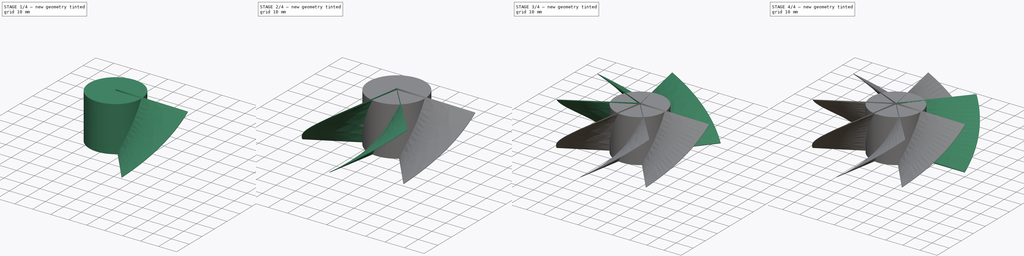
[diagram: build sequence overview — one tinted view per stage of 4, left to right]
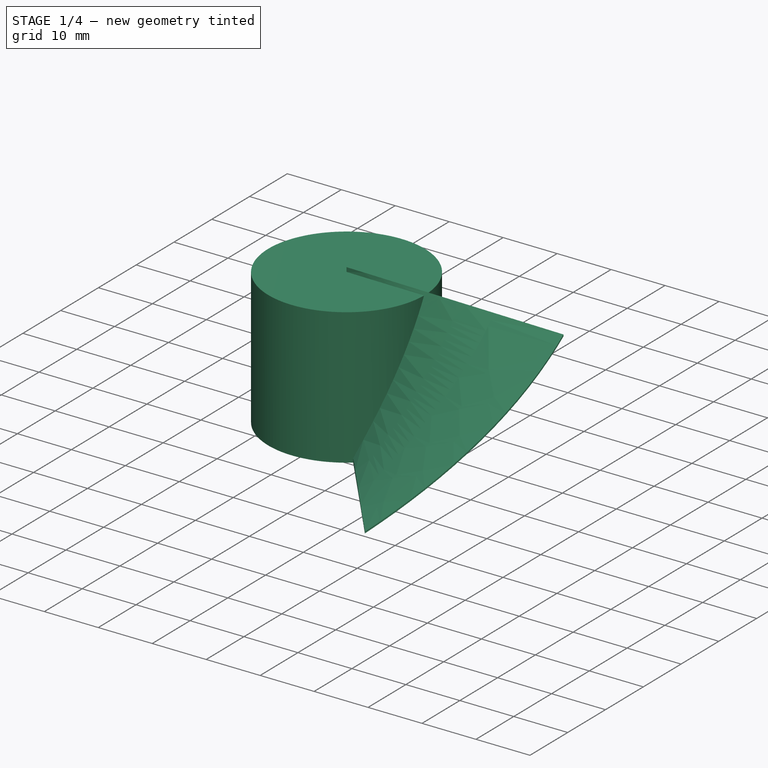
[diagram: stage 1 of 4 — iso view after this stage's code; geometry added in this stage tinted green]
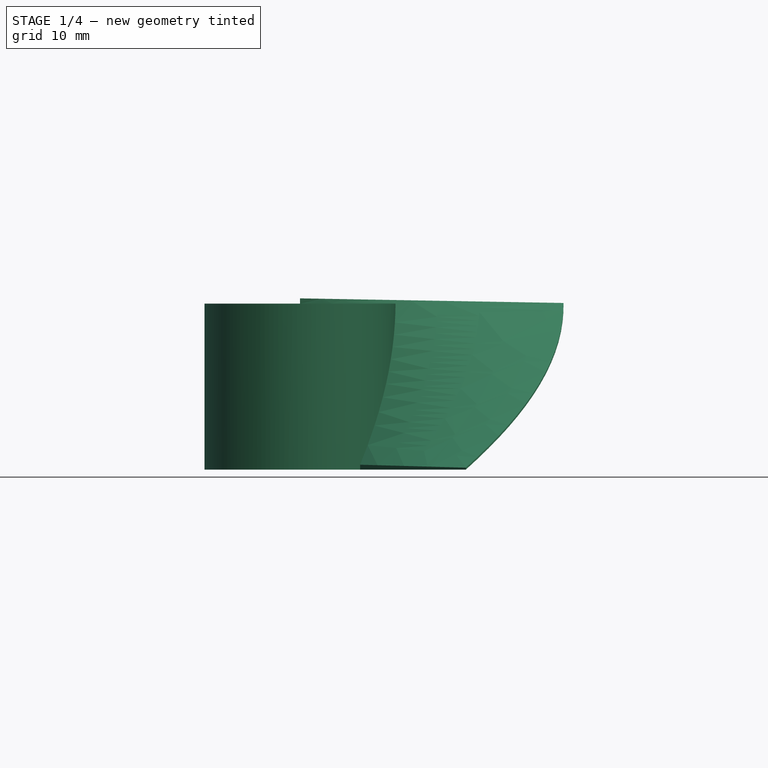
[diagram: stage 1 of 4 — front view after this stage's code; geometry added in this stage tinted green]
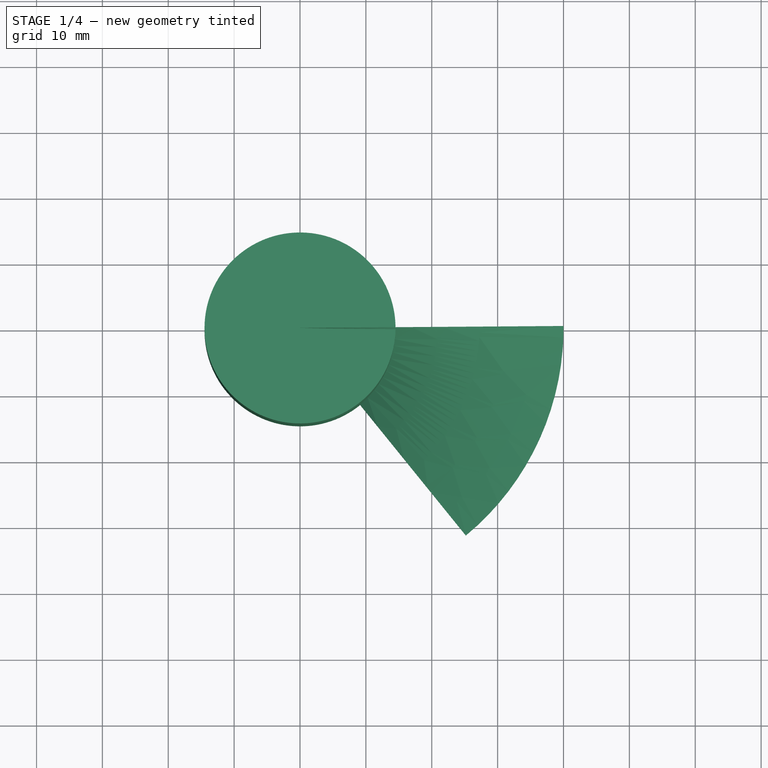
[diagram: stage 1 of 4 — top view after this stage's code; geometry added in this stage tinted green]
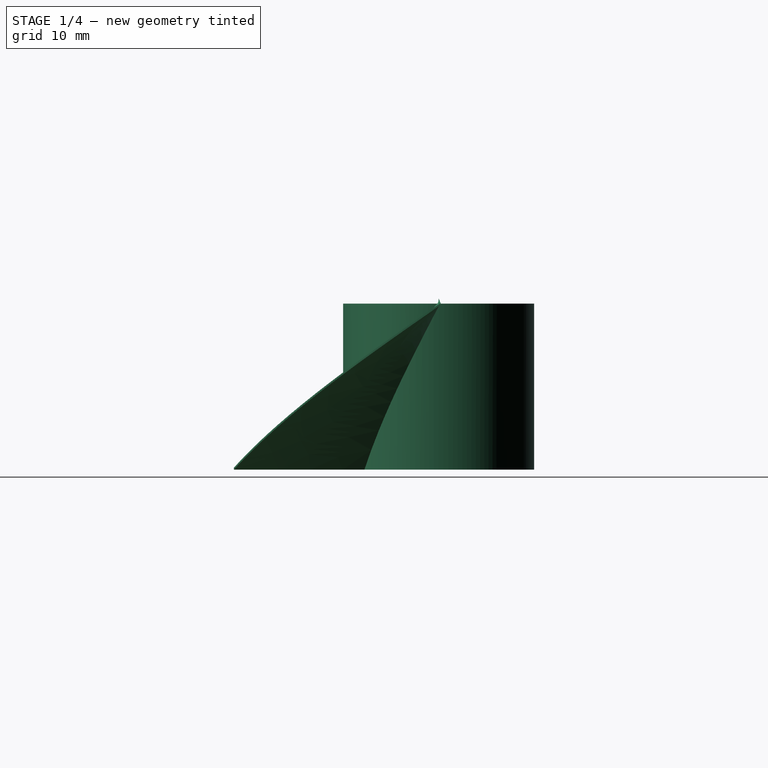
[diagram: stage 1 of 4 — right view after this stage's code; geometry added in this stage tinted green]
FCSTD DOCUMENT  (FreeCAD 0.19R23634 (Git))
Label: FanPropeller
License: All rights reserved
LicenseURL: http://en.wikipedia.org/wiki/All_rights_reserved
objects: Sketcher::SketchObject×8, PartDesign::Body×8, PartDesign::ShapeBinder×7, PartDesign::AdditivePipe×7, PartDesign::Pad×1, PartDesign::Boolean×1
note: 40 computed .brp shape members not serialized (recipe doc carries the construction recipe); baked Part::Feature solids carry a one-line shape summary decoded from their .brp

FEATURE [PartDesign::Body] Body007
  Group = -> [Sketch005,AdditivePipe005,CopyHelix005]
  Origin = -> Origin007
  Tip = -> AdditivePipe005
FEATURE [PartDesign::ShapeBinder] CopyHelix006
  Placement = pos=(0,0,0) rot=(0,0,-1;0.890118rad)
  TraceSupport = false
FEATURE [PartDesign::AdditivePipe] AdditivePipe006
  AuxilleryCurvelinear = true
  AuxillerySpineTangent = false
  Binormal = (0,0,0)
  Mode = 2
  Placement = pos=(0,0,0) rot=(1,0,0;1.5708rad)
  Profile = -> Sketch006
  Spine = -> CopyHelix006
  SpineTangent = false
  Transformation = 0
  Transition = 0
FEATURE [Sketcher::SketchObject] Sketch007
  FullyConstrained = true
  MapMode = 5
  Support = -> [XY_Plane008]
  sketch-geometry (1):
    g0: Circle CenterX=0 CenterY=0 CenterZ=0 NormalX=0 NormalY=0 NormalZ=1 AngleXU=0 Radius=14.5
  constraints (2):
    c: Coincident(g0,g-1)
    c: Diameter(g0) = 29
FEATURE [PartDesign::Pad] Pad
  BaseFeature = -> AdditivePipe006
  Direction = (1,1,1)
  Length = 25.2
  Length2 = 100
  Placement = pos=(0,0,0) rot=(1,0,0;1.5708rad)
  Profile = -> Sketch007
  Type = 0
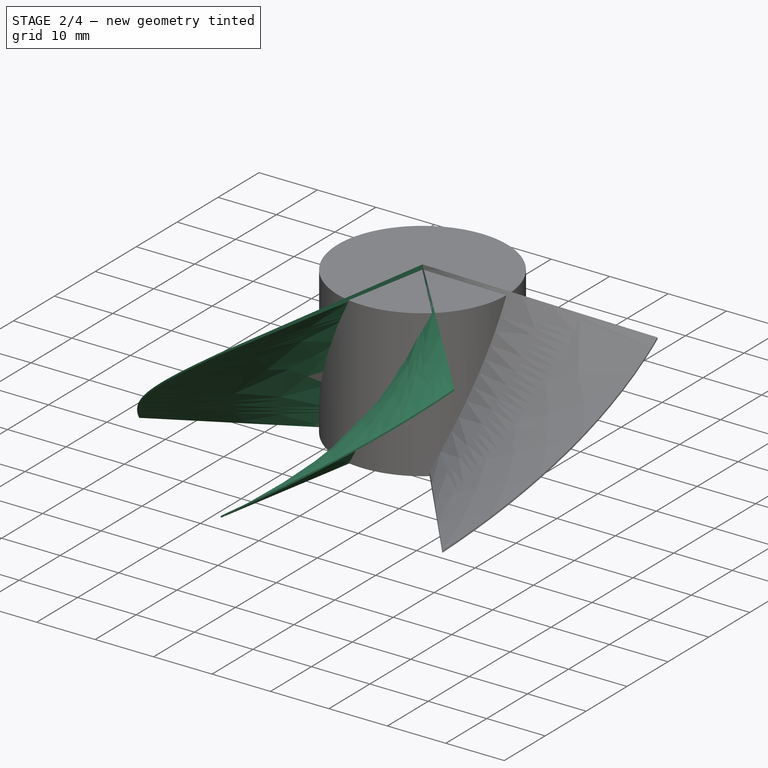
[diagram: stage 2 of 4 — iso view after this stage's code; geometry added in this stage tinted green]
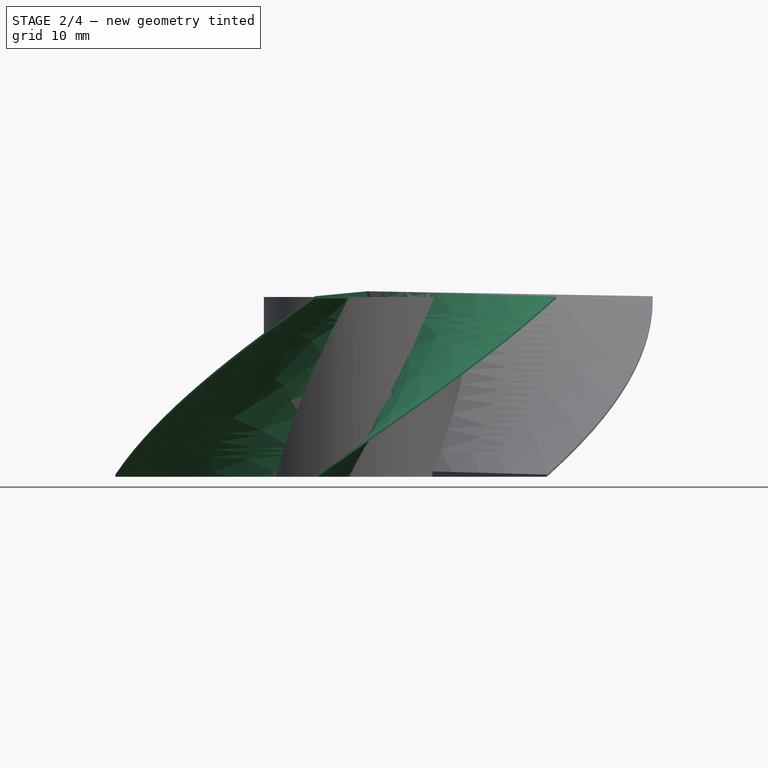
[diagram: stage 2 of 4 — front view after this stage's code; geometry added in this stage tinted green]
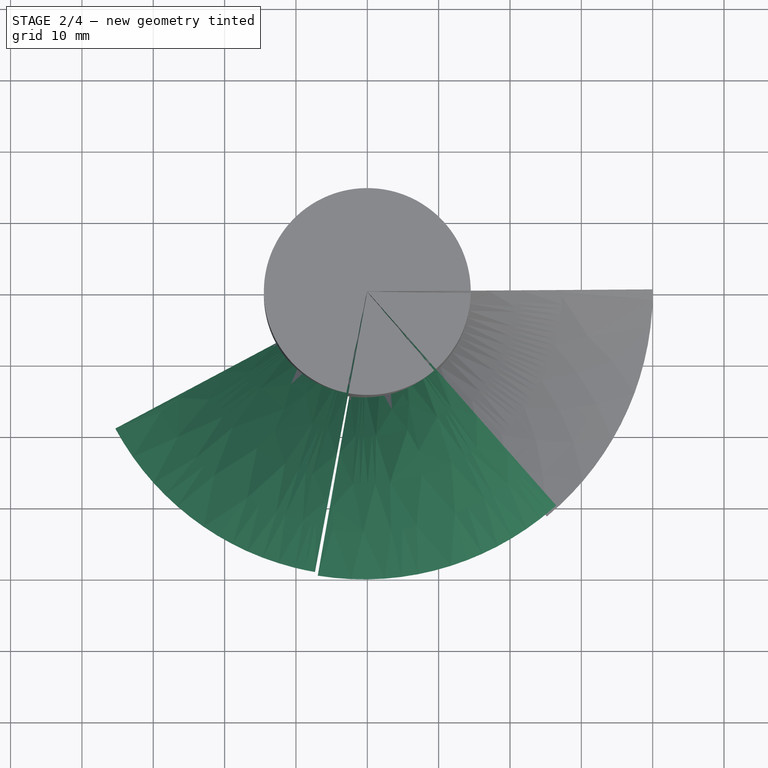
[diagram: stage 2 of 4 — top view after this stage's code; geometry added in this stage tinted green]
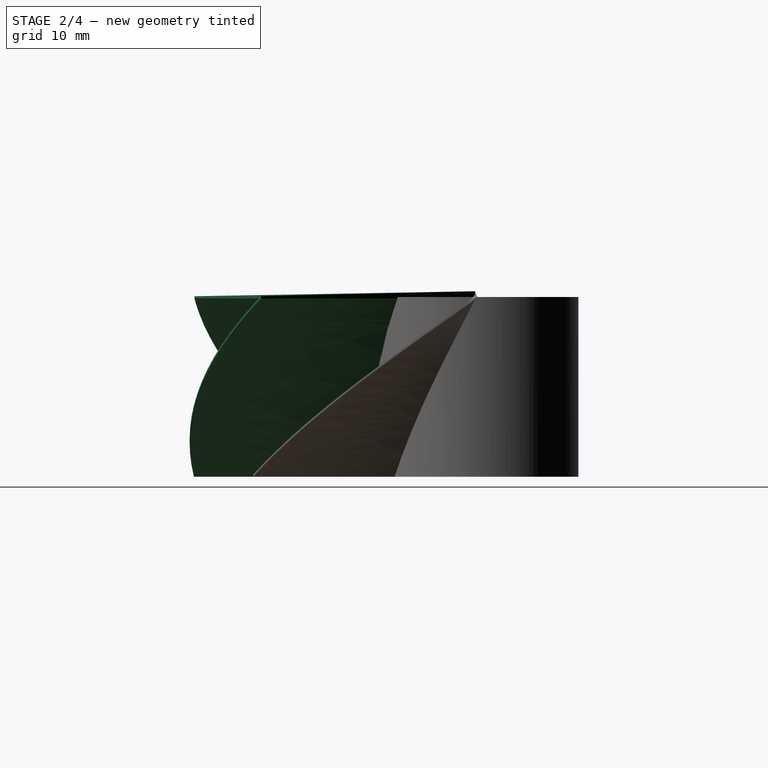
[diagram: stage 2 of 4 — right view after this stage's code; geometry added in this stage tinted green]
FEATURE [PartDesign::Body] Body004
  Group = -> [Sketch003,AdditivePipe003,CopyHelix003]
  Origin = -> Origin004
  Tip = -> AdditivePipe003
FEATURE [PartDesign::ShapeBinder] CopyHelix004
  Placement = pos=(0,0,0) rot=(0,0,1;3.63029rad)
  TraceSupport = false
FEATURE [PartDesign::AdditivePipe] AdditivePipe004
  AuxilleryCurvelinear = true
  AuxillerySpineTangent = false
  Binormal = (0,0,0)
  Mode = 2
  Placement = pos=(0,0,0) rot=(1,0,0;1.5708rad)
  Profile = -> Sketch004
  Spine = -> CopyHelix004
  SpineTangent = false
  Transformation = 0
  Transition = 0
FEATURE [PartDesign::Body] Body005
  Group = -> [Sketch004,AdditivePipe004,CopyHelix004]
  Origin = -> Origin005
  Tip = -> AdditivePipe004
FEATURE [PartDesign::ShapeBinder] CopyHelix005
  Placement = pos=(0,0,0) rot=(0,0,-1;1.74533rad)
  TraceSupport = false
FEATURE [PartDesign::AdditivePipe] AdditivePipe005
  AuxilleryCurvelinear = true
  AuxillerySpineTangent = false
  Binormal = (0,0,0)
  Mode = 2
  Placement = pos=(0,0,0) rot=(1,0,0;1.5708rad)
  Profile = -> Sketch005
  Spine = -> CopyHelix005
  SpineTangent = false
  Transformation = 0
  Transition = 0
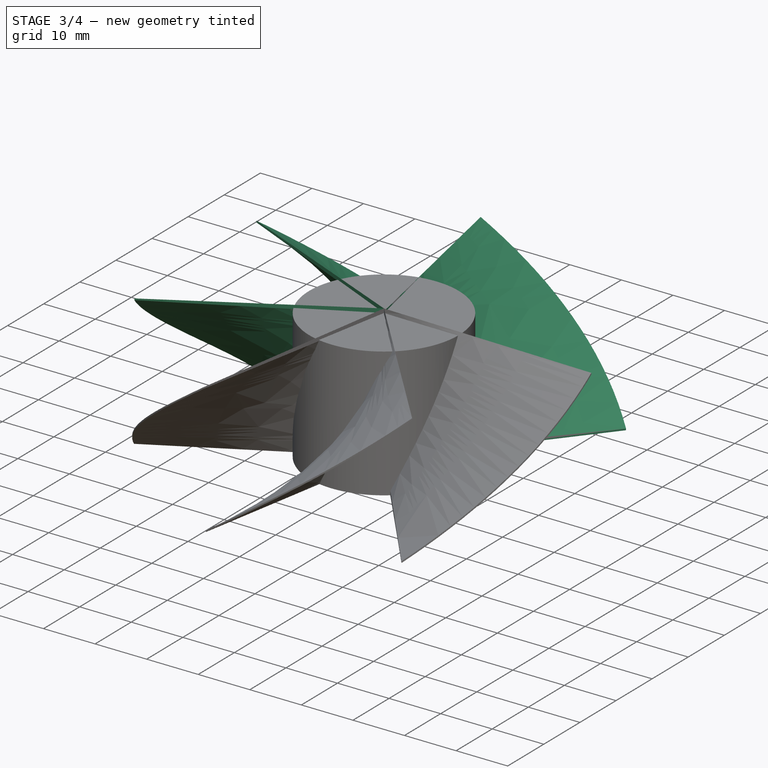
[diagram: stage 3 of 4 — iso view after this stage's code; geometry added in this stage tinted green]
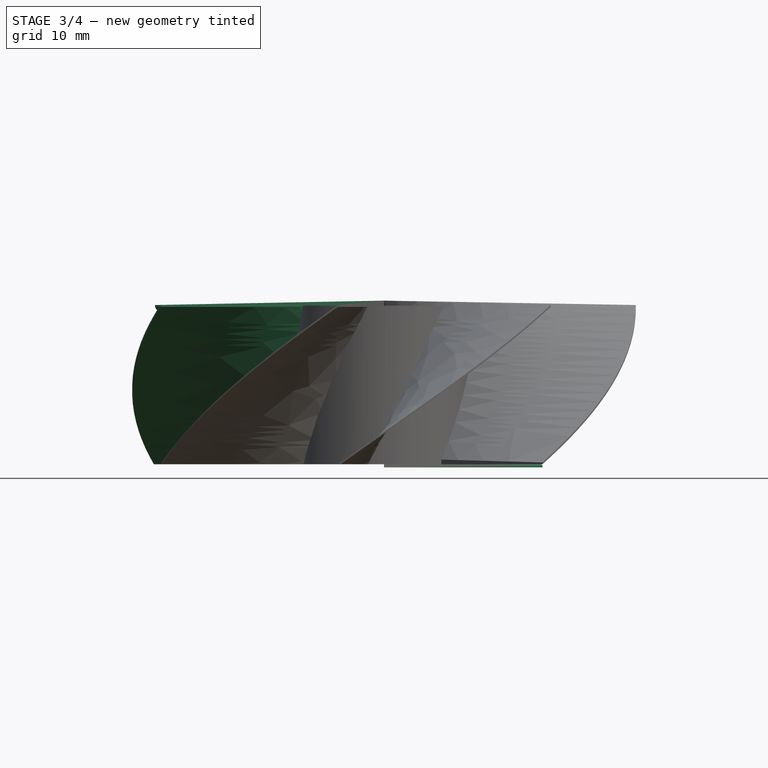
[diagram: stage 3 of 4 — front view after this stage's code; geometry added in this stage tinted green]
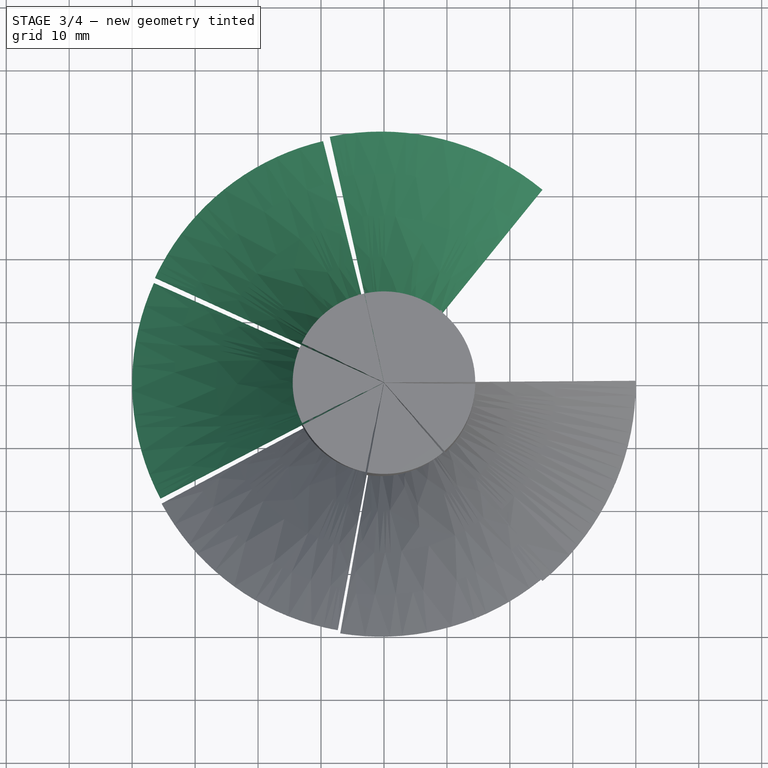
[diagram: stage 3 of 4 — top view after this stage's code; geometry added in this stage tinted green]
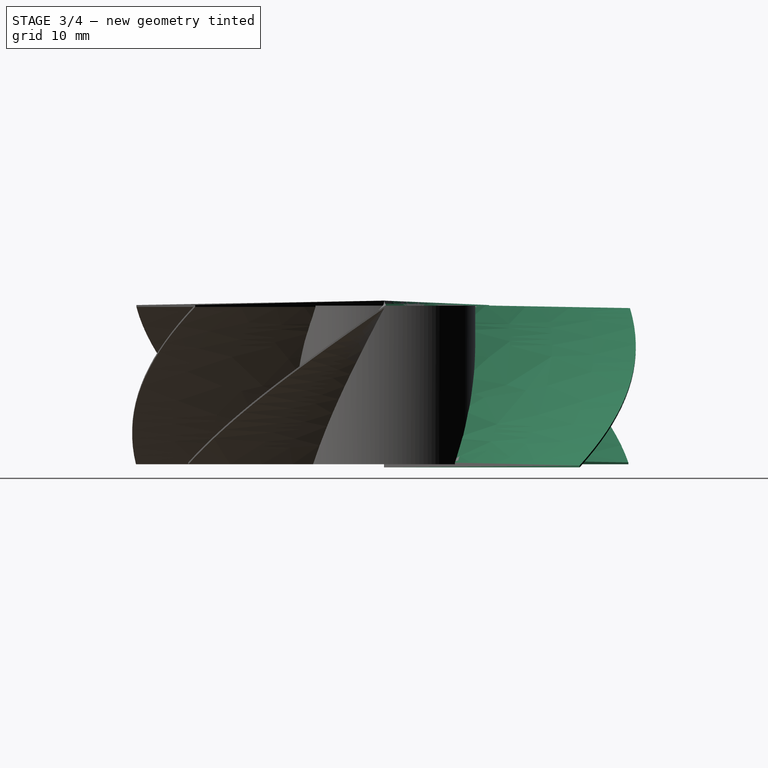
[diagram: stage 3 of 4 — right view after this stage's code; geometry added in this stage tinted green]
FEATURE [PartDesign::Body] Body
  Group = -> [Sketch,AdditivePipe,CopyHelix]
  Origin = -> Origin
  Tip = -> AdditivePipe
FEATURE [PartDesign::ShapeBinder] CopyHelix001
  Placement = pos=(0,0,0) rot=(0,0,1;0.890118rad)
  TraceSupport = false
FEATURE [PartDesign::AdditivePipe] AdditivePipe001
  AuxilleryCurvelinear = true
  AuxillerySpineTangent = false
  Binormal = (0,0,0)
  Mode = 2
  Placement = pos=(0,0,0) rot=(1,0,0;1.5708rad)
  Profile = -> Sketch001
  Spine = -> CopyHelix001
  SpineTangent = false
  Transformation = 0
  Transition = 0
FEATURE [PartDesign::Body] Body001
  Group = -> [Sketch001,AdditivePipe001,CopyHelix001]
  Origin = -> Origin001
  Tip = -> AdditivePipe001
FEATURE [PartDesign::ShapeBinder] CopyHelix002
  Placement = pos=(0,0,0) rot=(0,0,1;1.81514rad)
  TraceSupport = false
FEATURE [PartDesign::AdditivePipe] AdditivePipe002
  AuxilleryCurvelinear = true
  AuxillerySpineTangent = false
  Binormal = (0,0,0)
  Mode = 2
  Placement = pos=(0,0,0) rot=(1,0,0;1.5708rad)
  Profile = -> Sketch002
  Spine = -> CopyHelix002
  SpineTangent = false
  Transformation = 0
  Transition = 0
FEATURE [PartDesign::Body] Body003
  Group = -> [Sketch002,AdditivePipe002,CopyHelix002]
  Origin = -> Origin003
  Tip = -> AdditivePipe002
FEATURE [PartDesign::ShapeBinder] CopyHelix003
  Placement = pos=(0,0,0) rot=(0,0,1;2.72271rad)
  TraceSupport = false
FEATURE [PartDesign::AdditivePipe] AdditivePipe003
  AuxilleryCurvelinear = true
  AuxillerySpineTangent = false
  Binormal = (0,0,0)
  Mode = 2
  Placement = pos=(0,0,0) rot=(1,0,0;1.5708rad)
  Profile = -> Sketch003
  Spine = -> CopyHelix003
  SpineTangent = false
  Transformation = 0
  Transition = 0
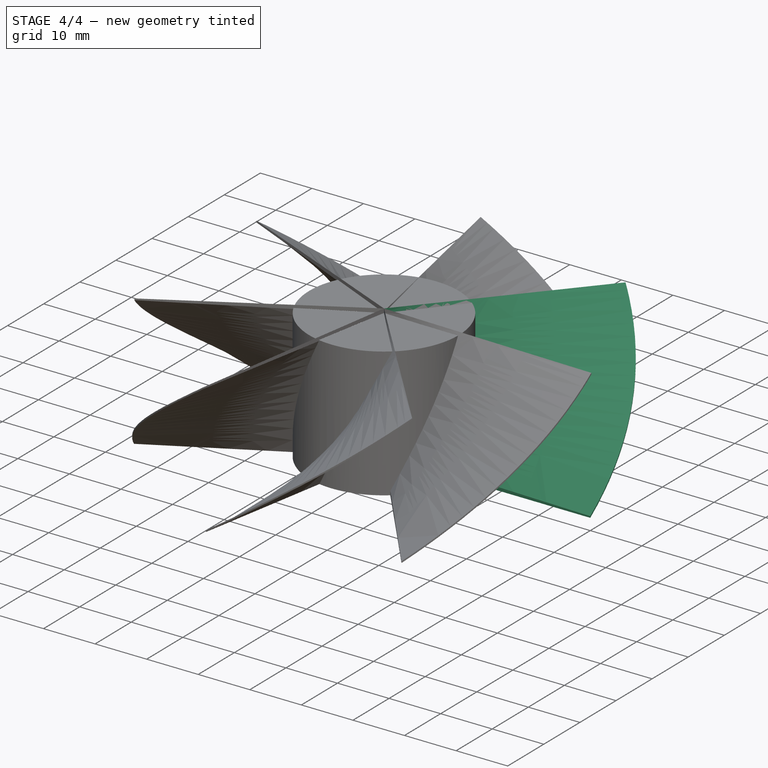
[diagram: stage 4 of 4 — iso view after this stage's code; geometry added in this stage tinted green]
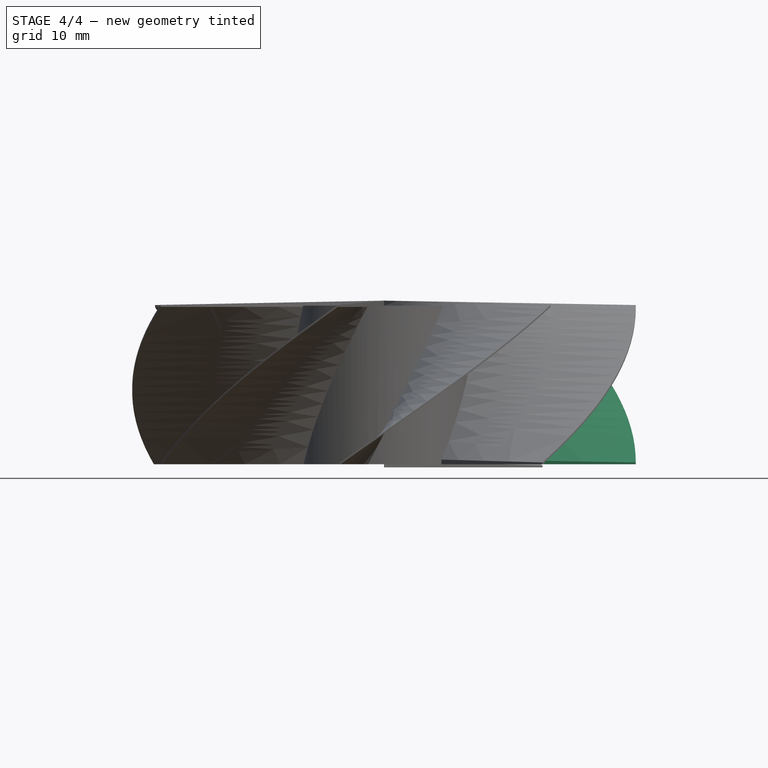
[diagram: stage 4 of 4 — front view after this stage's code; geometry added in this stage tinted green]
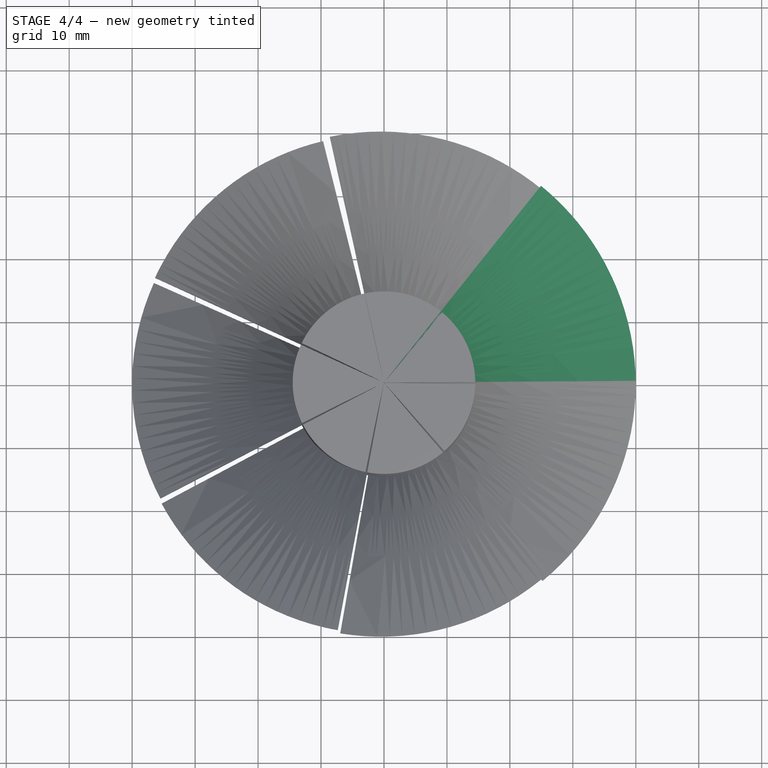
[diagram: stage 4 of 4 — top view after this stage's code; geometry added in this stage tinted green]
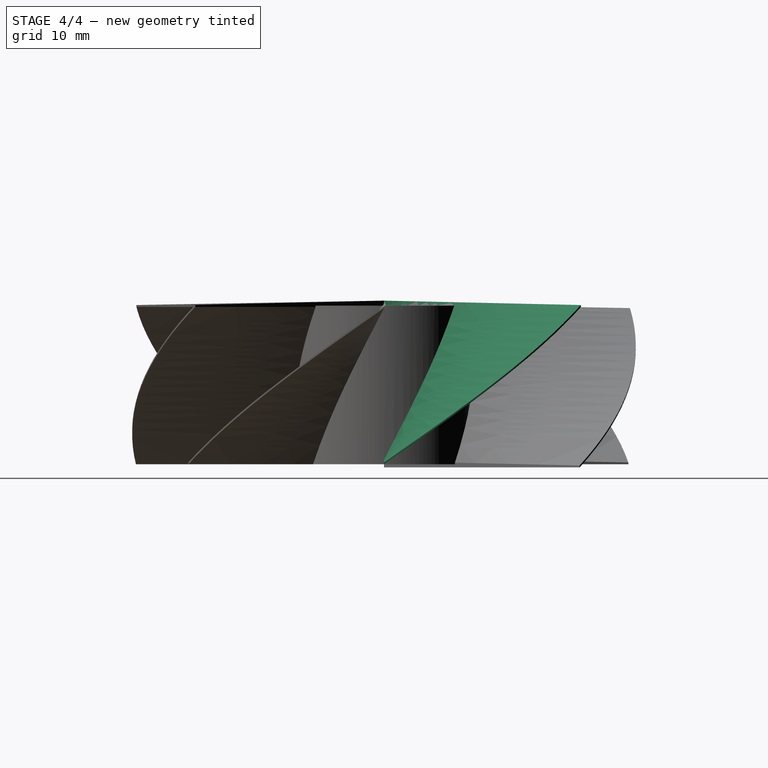
[diagram: stage 4 of 4 — right view after this stage's code; geometry added in this stage tinted green]
FEATURE [Sketcher::SketchObject] Sketch
  FullyConstrained = true
  MapMode = 5
  Placement = pos=(0,0,0) rot=(1,0,0;1.5708rad)
  Support = -> [XZ_Plane]
  sketch-geometry (4):
    g0: LineSegment StartX=0 StartY=0 StartZ=0 EndX=40 EndY=0 EndZ=0
    g1: LineSegment StartX=40 StartY=0 StartZ=0 EndX=40 EndY=0.3 EndZ=0
    g2: LineSegment StartX=40 StartY=0.3 StartZ=0 EndX=0 EndY=1 EndZ=0
    g3: LineSegment StartX=0 StartY=1 StartZ=0 EndX=0 EndY=0 EndZ=0
  constraints (11):
    c: Horizontal(g0)
    c: Coincident(g1,g0)
    c: Coincident(g2,g1)
    c: PointOnObject(g2,g-2)
    c: Coincident(g3,g2)
    c: Coincident(g3,g0)
    c: Vertical(g1)
    c: Distance(g1) = 0.3
    c: Distance(g3) = 1
    c: Distance(g0) = 40
    c: Coincident(g0,g-1)
FEATURE [Sketcher::SketchObject] Sketch001
  AttachmentOffset = pos=(0,0,0) rot=(0,1,0;0.907571rad)
  FullyConstrained = true
  MapMode = 5
  Placement = pos=(0,0,0) rot=(0.823173,0.401488,0.401488;1.76417rad)
  Support = -> [XZ_Plane001]
  sketch-geometry (4):
    g0: LineSegment StartX=0 StartY=1 StartZ=0 EndX=0 EndY=0 EndZ=0
    g1: LineSegment StartX=0 StartY=0 StartZ=0 EndX=40 EndY=0 EndZ=0
    g2: LineSegment StartX=40 StartY=0 StartZ=0 EndX=40 EndY=0.3 EndZ=0
    g3: LineSegment StartX=40 StartY=0.3 StartZ=0 EndX=0 EndY=1 EndZ=0
  constraints (11):
    c: PointOnObject(g0,g-2)
    c: Coincident(g0,g-1)
    c: Coincident(g1,g0)
    c: Horizontal(g1)
    c: Coincident(g2,g1)
    c: Vertical(g2)
    c: Coincident(g3,g2)
    c: Coincident(g3,g0)
    c: Distance(g1) = 40
    c: Distance(g0) = 1
    c: Distance(g2) = 0.3
FEATURE [Sketcher::SketchObject] Sketch002
  AttachmentOffset = pos=(0,0,0) rot=(0,1,0;1.81514rad)
  FullyConstrained = true
  MapMode = 5
  Placement = pos=(0,0,0) rot=(0.483566,0.618936,0.618936;2.24076rad)
  Support = -> [XZ_Plane003]
  sketch-geometry (4):
    g0: LineSegment StartX=0 StartY=1 StartZ=0 EndX=0 EndY=0 EndZ=0
    g1: LineSegment StartX=0 StartY=0 StartZ=0 EndX=40 EndY=0 EndZ=0
    g2: LineSegment StartX=40 StartY=0 StartZ=0 EndX=40 EndY=0.3 EndZ=0
    g3: LineSegment StartX=40 StartY=0.3 StartZ=0 EndX=0 EndY=1 EndZ=0
  constraints (11):
    c: PointOnObject(g0,g-2)
    c: Coincident(g0,g-1)
    c: Coincident(g1,g0)
    c: Horizontal(g1)
    c: Coincident(g2,g1)
    c: Vertical(g2)
    c: Coincident(g3,g2)
    c: Coincident(g3,g0)
    c: Distance(g1) = 40
    c: Distance(g0) = 1
    c: Distance(g2) = 0.3
FEATURE [Sketcher::SketchObject] Sketch003
  AttachmentOffset = pos=(0,0,0) rot=(0,1,0;2.72271rad)
  FullyConstrained = true
  MapMode = 5
  Placement = pos=(0,0,0) rot=(0.148631,0.699253,0.699253;2.84649rad)
  Support = -> [XZ_Plane004]
  sketch-geometry (4):
    g0: LineSegment StartX=0 StartY=1 StartZ=0 EndX=0 EndY=0 EndZ=0
    g1: LineSegment StartX=0 StartY=0 StartZ=0 EndX=40 EndY=0 EndZ=0
    g2: LineSegment StartX=40 StartY=0 StartZ=0 EndX=40 EndY=0.3 EndZ=0
    g3: LineSegment StartX=40 StartY=0.3 StartZ=0 EndX=0 EndY=1 EndZ=0
  constraints (11):
    c: PointOnObject(g0,g-2)
    c: Coincident(g0,g-1)
    c: Coincident(g1,g0)
    c: Horizontal(g1)
    c: Coincident(g2,g1)
    c: Vertical(g2)
    c: Coincident(g3,g2)
    c: Coincident(g3,g0)
    c: Distance(g1) = 40
    c: Distance(g0) = 1
    c: Distance(g2) = 0.3
FEATURE [Sketcher::SketchObject] Sketch004
  AttachmentOffset = pos=(0,0,0) rot=(0,1,0;3.63029rad)
  FullyConstrained = true
  MapMode = 5
  Placement = pos=(0,0,0) rot=(-0.173624,0.696367,0.696367;3.48541rad)
  Support = -> [XZ_Plane005]
  sketch-geometry (4):
    g0: LineSegment StartX=0 StartY=1 StartZ=0 EndX=0 EndY=0 EndZ=0
    g1: LineSegment StartX=0 StartY=0 StartZ=0 EndX=40 EndY=0 EndZ=0
    g2: LineSegment StartX=40 StartY=0 StartZ=0 EndX=40 EndY=0.3 EndZ=0
    g3: LineSegment StartX=40 StartY=0.3 StartZ=0 EndX=0 EndY=1 EndZ=0
  constraints (11):
    c: PointOnObject(g0,g-2)
    c: Coincident(g0,g-1)
    c: Coincident(g1,g0)
    c: Horizontal(g1)
    c: Coincident(g2,g1)
    c: Vertical(g2)
    c: Coincident(g3,g2)
    c: Coincident(g3,g0)
    c: Distance(g1) = 40
    c: Distance(g0) = 1
    c: Distance(g2) = 0.3
FEATURE [Sketcher::SketchObject] Sketch005
  AttachmentOffset = pos=(0,0,0) rot=(0,1,0;4.53786rad)
  FullyConstrained = true
  MapMode = 5
  Placement = pos=(0,0,0) rot=(-0.510274,0.60812,0.60812;4.08526rad)
  Support = -> [XZ_Plane007]
  sketch-geometry (4):
    g0: LineSegment StartX=0 StartY=1 StartZ=0 EndX=0 EndY=0 EndZ=0
    g1: LineSegment StartX=0 StartY=0 StartZ=0 EndX=40 EndY=0 EndZ=0
    g2: LineSegment StartX=40 StartY=0 StartZ=0 EndX=40 EndY=0.3 EndZ=0
    g3: LineSegment StartX=40 StartY=0.3 StartZ=0 EndX=0 EndY=1 EndZ=0
  constraints (11):
    c: PointOnObject(g0,g-2)
    c: Coincident(g0,g-1)
    c: Coincident(g1,g0)
    c: Horizontal(g1)
    c: Coincident(g2,g1)
    c: Vertical(g2)
    c: Coincident(g3,g2)
    c: Coincident(g3,g0)
    c: Distance(g1) = 40
    c: Distance(g0) = 1
    c: Distance(g2) = 0.3
FEATURE [Sketcher::SketchObject] Sketch006
  AttachmentOffset = pos=(0,0,0) rot=(0,1,0;5.39307rad)
  FullyConstrained = true
  MapMode = 5
  Placement = pos=(0,0,0) rot=(-0.829023,0.395424,0.395424;4.52597rad)
  Support = -> [XZ_Plane008]
  sketch-geometry (4):
    g0: LineSegment StartX=0 StartY=1 StartZ=0 EndX=0 EndY=0 EndZ=0
    g1: LineSegment StartX=0 StartY=0 StartZ=0 EndX=40 EndY=0 EndZ=0
    g2: LineSegment StartX=40 StartY=0 StartZ=0 EndX=40 EndY=0.3 EndZ=0
    g3: LineSegment StartX=40 StartY=0.3 StartZ=0 EndX=0 EndY=1 EndZ=0
  constraints (11):
    c: PointOnObject(g0,g-2)
    c: Coincident(g0,g-1)
    c: Coincident(g1,g0)
    c: Horizontal(g1)
    c: Coincident(g2,g1)
    c: Vertical(g2)
    c: Coincident(g3,g2)
    c: Coincident(g3,g0)
    c: Distance(g1) = 40
    c: Distance(g0) = 1
    c: Distance(g2) = 0.3
FEATURE [PartDesign::ShapeBinder] CopyHelix
  TraceSupport = false
FEATURE [PartDesign::AdditivePipe] AdditivePipe
  AuxilleryCurvelinear = true
  AuxillerySpineTangent = false
  Binormal = (0,0,0)
  Mode = 2
  Placement = pos=(0,0,0) rot=(1,0,0;1.5708rad)
  Profile = -> Sketch
  Spine = -> CopyHelix
  SpineTangent = false
  Transformation = 0
  Transition = 0
FEATURE [PartDesign::Boolean] Boolean
  BaseFeature = -> Pad
  Group = -> [Body,Body001,Body003,Body004,Body005,Body007]
  Type = 0
FEATURE [PartDesign::Body] Body008
  Group = -> [Sketch006,AdditivePipe006,CopyHelix006,Sketch007,Pad,Boolean]
  Origin = -> Origin008
  Tip = -> Boolean
FEATURE [PartDesign::Body] Body009
  Origin = -> Origin009
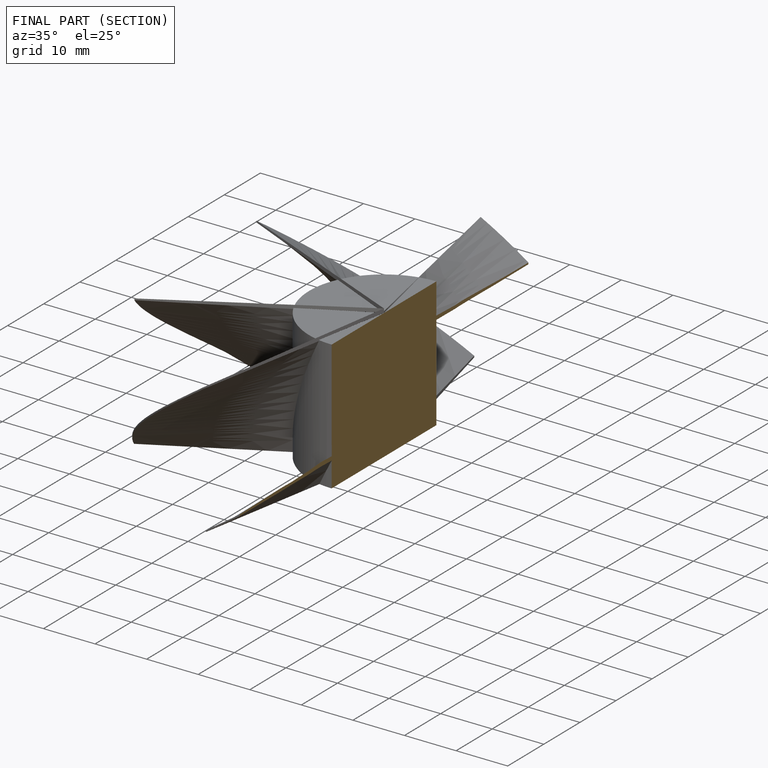
[diagram: finished part — half-section view (interior)]
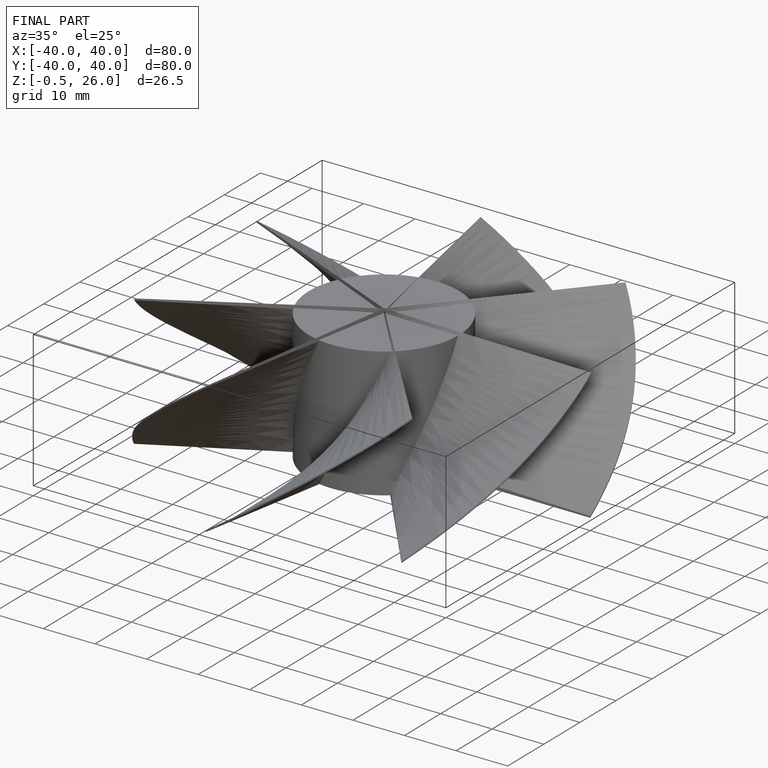
[diagram: finished part — iso view with bounding-box wireframe]
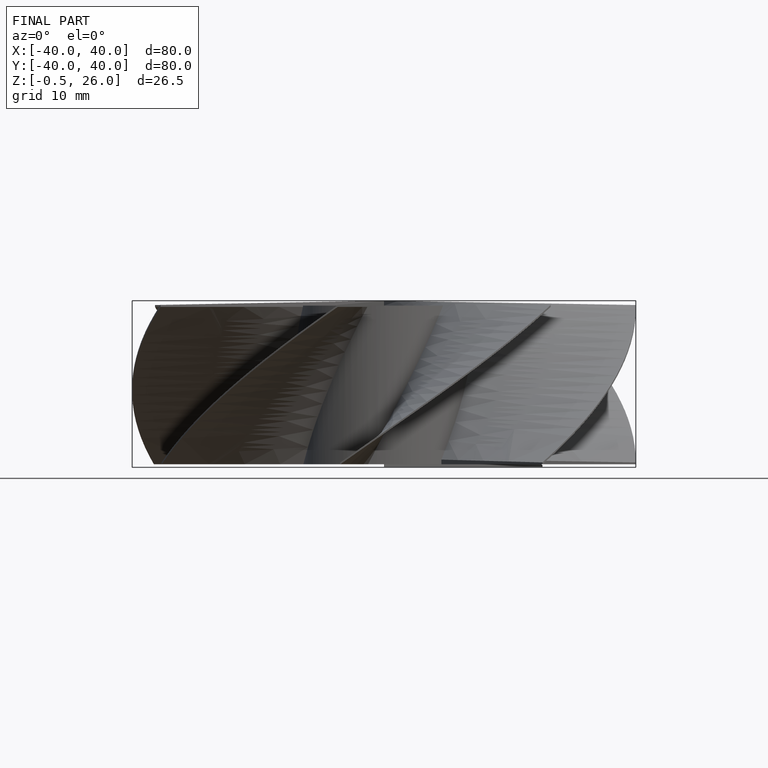
[diagram: finished part — front view with bounding-box wireframe]
